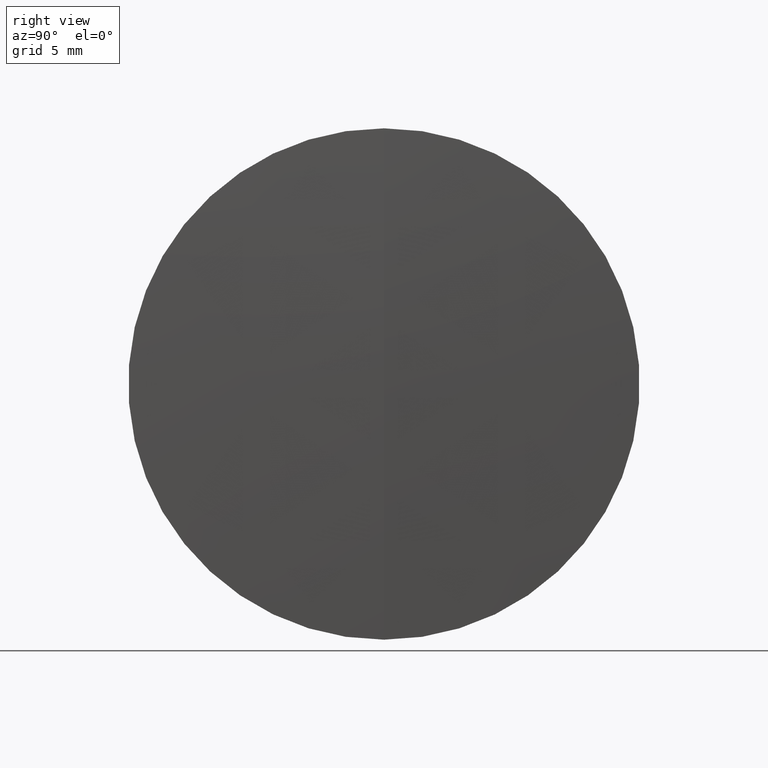
[diagram: clean part render]
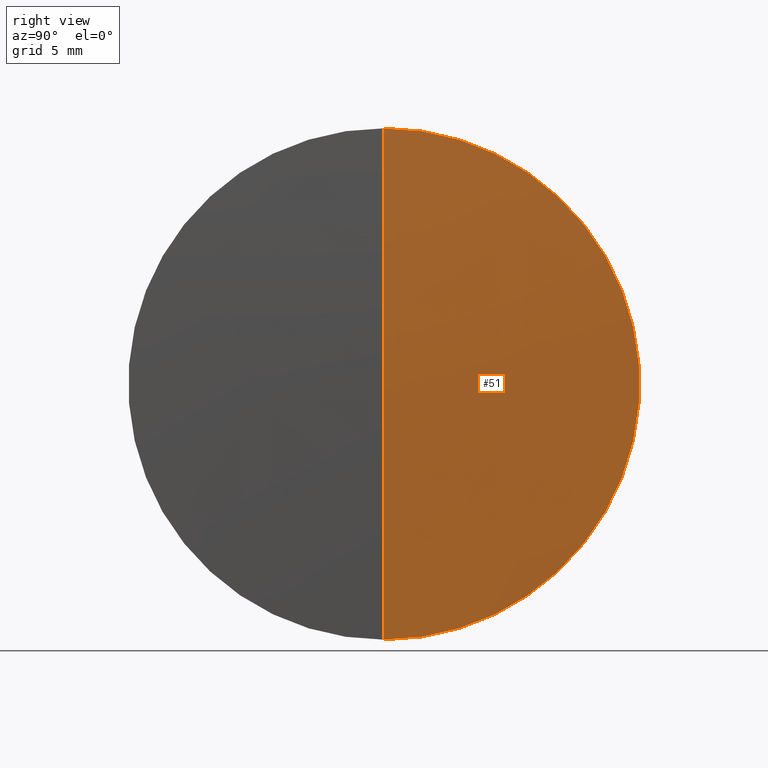
[diagram: same view with one face highlighted and labeled with its STEP entity id]
A machine part, right view. The second image highlights one B-rep face of the part: STEP entity #51.
In plain terms, the highlighted spherical surface has radius 256.012 mm.
Its self-contained STEP definition (entity closure, byte-faithful):
#8 = FACE_OUTER_BOUND ( 'NONE', #17, .T. ) ;
#17 = EDGE_LOOP ( 'NONE', ( #144, #111, #100 ) ) ;
#47 = EDGE_CURVE ( 'NONE', #93, #317, #288, .T. ) ;
#51 = ADVANCED_FACE ( 'NONE', ( #8 ), #289, .T. ) ;
#76 = DIRECTION ( 'NONE',  ( 0.0000000000000000000, 0.0000000000000000000, 1.000000000000000000 ) ) ;
#82 = CARTESIAN_POINT ( 'NONE',  ( 96.59932540629262100, 0.0000000000000000000, 0.0000000000000000000 ) ) ;
#93 = VERTEX_POINT ( 'NONE', #136 ) ;
#100 = ORIENTED_EDGE ( 'NONE', *, *, #287, .F. ) ;
#108 = CARTESIAN_POINT ( 'NONE',  ( -159.1073310264252700, 0.0000000000000000000, 0.0000000000000000000 ) ) ;
#111 = ORIENTED_EDGE ( 'NONE', *, *, #152, .T. ) ;
#118 = CARTESIAN_POINT ( 'NONE',  ( 96.59932540629262100, 1.530808498934187000E-015, -12.49999999999993200 ) ) ;
#136 = CARTESIAN_POINT ( 'NONE',  ( 96.90466897357480000, 0.0000000000000000000, 1.567621381716561600E-014 ) ) ;
#137 = VERTEX_POINT ( 'NONE', #118 ) ;
#144 = ORIENTED_EDGE ( 'NONE', *, *, #47, .F. ) ;
#145 = DIRECTION ( 'NONE',  ( 0.0000000000000000000, 0.0000000000000000000, 1.000000000000000000 ) ) ;
#146 = AXIS2_PLACEMENT_3D ( 'NONE', #332, #314, #311 ) ;
#152 = EDGE_CURVE ( 'NONE', #93, #137, #157, .T. ) ;
#157 = CIRCLE ( 'NONE', #303, 256.0120000000000600 ) ;
#162 = DIRECTION ( 'NONE',  ( -1.000000000000000000, -0.0000000000000000000, -0.0000000000000000000 ) ) ;
#174 = DIRECTION ( 'NONE',  ( 0.0000000000000000000, 1.000000000000000000, 0.0000000000000000000 ) ) ;
#199 = CARTESIAN_POINT ( 'NONE',  ( -159.1073310264252700, 0.0000000000000000000, 0.0000000000000000000 ) ) ;
#227 = AXIS2_PLACEMENT_3D ( 'NONE', #82, #162, #76 ) ;
#257 = AXIS2_PLACEMENT_3D ( 'NONE', #199, #174, #145 ) ;
#270 = CIRCLE ( 'NONE', #227, 12.49999999999993200 ) ;
#271 = DIRECTION ( 'NONE',  ( 0.0000000000000000000, -1.224646799147353500E-016, 1.000000000000000000 ) ) ;
#287 = EDGE_CURVE ( 'NONE', #317, #137, #270, .T. ) ;
#288 = CIRCLE ( 'NONE', #146, 256.0120000000000600 ) ;
#289 = SPHERICAL_SURFACE ( 'NONE', #257, 256.0120000000000600 ) ;
#303 = AXIS2_PLACEMENT_3D ( 'NONE', #108, #322, #271 ) ;
#311 = DIRECTION ( 'NONE',  ( 0.0000000000000000000, 0.0000000000000000000, -1.000000000000000000 ) ) ;
#314 = DIRECTION ( 'NONE',  ( 0.0000000000000000000, -1.000000000000000000, 0.0000000000000000000 ) ) ;
#317 = VERTEX_POINT ( 'NONE', #337 ) ;
#322 = DIRECTION ( 'NONE',  ( -0.0000000000000000000, 1.000000000000000000, 1.224646799147353200E-016 ) ) ;
#332 = CARTESIAN_POINT ( 'NONE',  ( -159.1073310264252700, 0.0000000000000000000, 0.0000000000000000000 ) ) ;
#337 = CARTESIAN_POINT ( 'NONE',  ( 96.59932540629262100, 0.0000000000000000000, 12.49999999999993200 ) ) ;